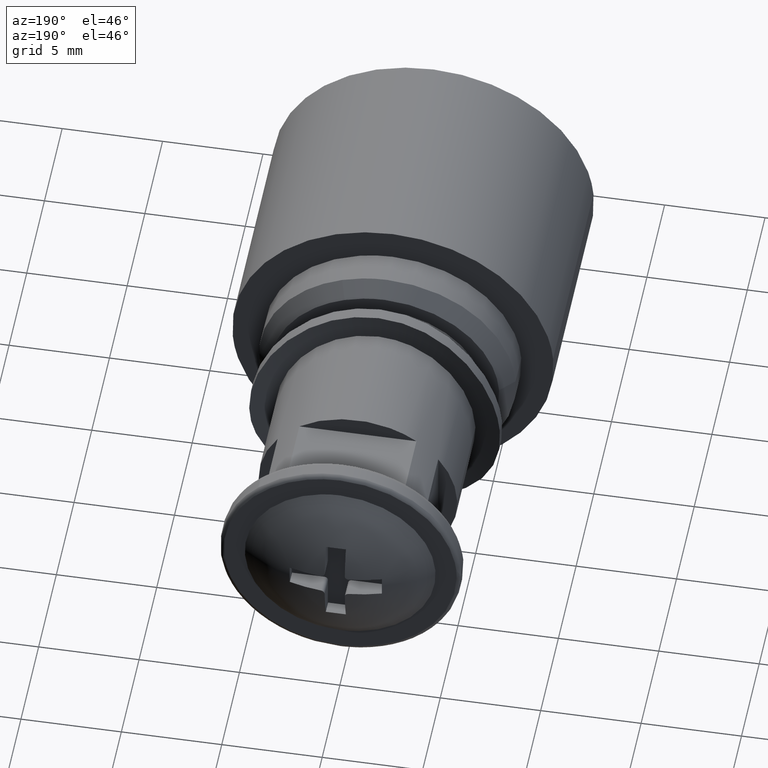
[diagram: clean part render]
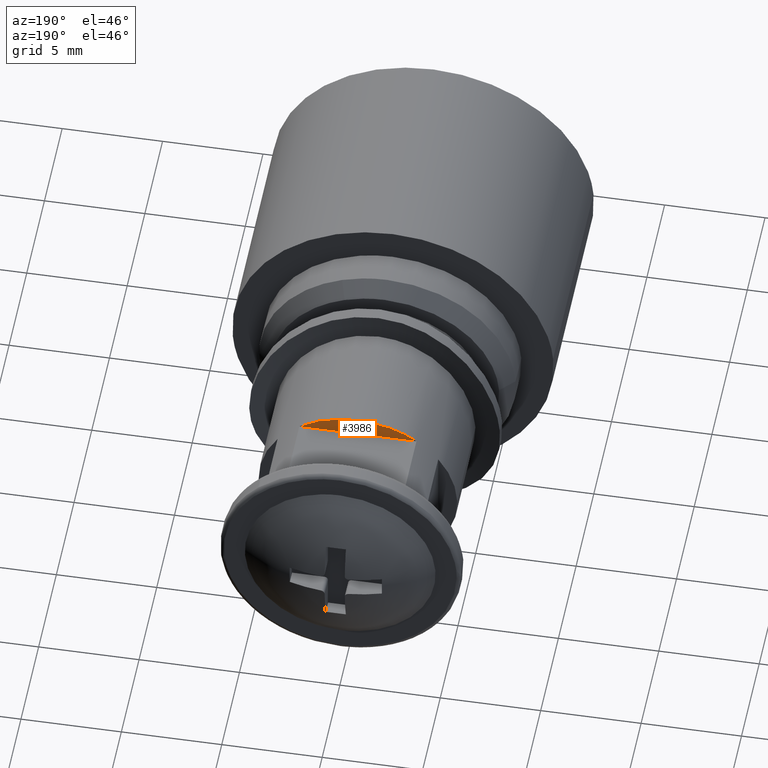
[diagram: same view with one face highlighted and labeled with its STEP entity id]
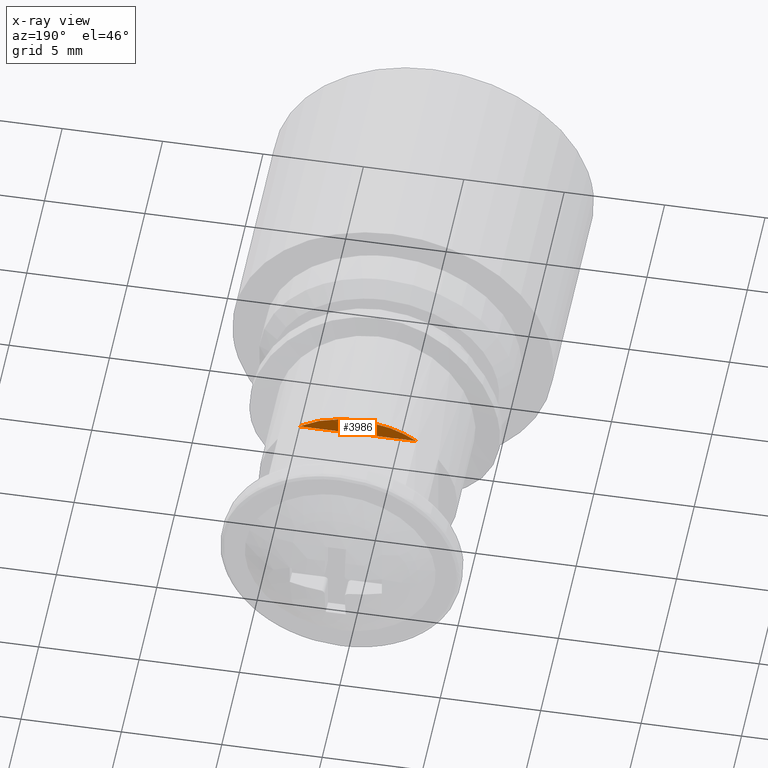
[diagram: x-ray of the same camera — body ghosted, the highlighted face saturated]
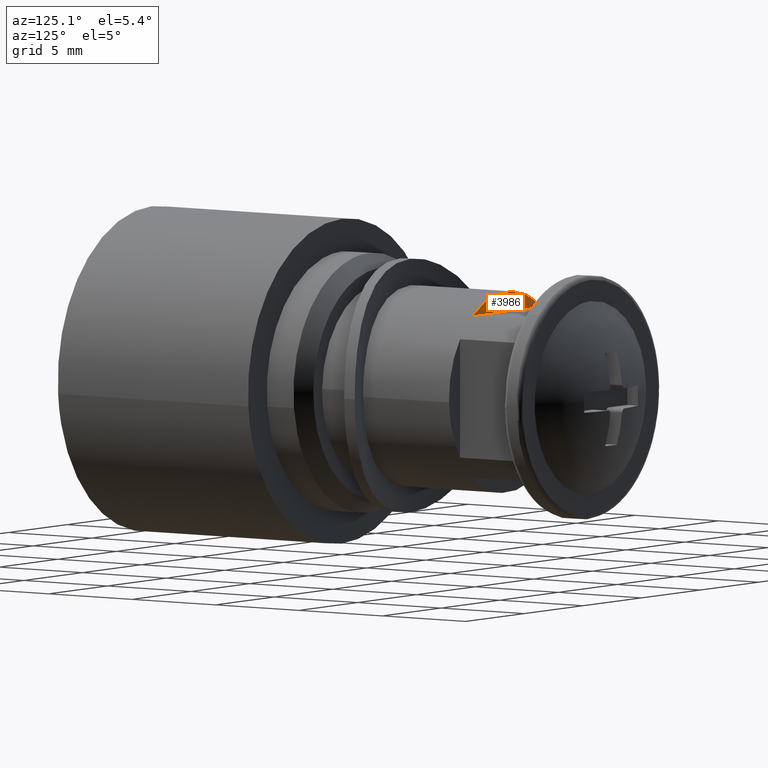
[diagram: same view with one face highlighted and labeled with its STEP entity id]
A machine part, auxiliary view. The second image highlights one B-rep face of the part: STEP entity #3986.
The next image is the same camera in x-ray: the body ghosted, the highlighted face saturated — about 0% of this face is hidden behind the body in this view.
A second angle (auxiliary view) of the same face is appended — the face is thin or edge-on in the first view.
In plain terms, the highlighted face is a freeform B-spline surface patch.
Its self-contained STEP definition (entity closure, byte-faithful):
#1923=CARTESIAN_POINT('',(2.915904800862819,9.900000470224770,4.000000189989706));
#1924=VERTEX_POINT('',#1923);
#1930=CARTESIAN_POINT('',(-2.915904800862819,9.900000470224770,4.000000189989706));
#1931=VERTEX_POINT('',#1930);
#1932=CARTESIAN_POINT('',(2.915904800862822,9.900000470224770,4.000000189989703));
#1933=CARTESIAN_POINT('',(8.673617E-016,9.900000470224768,6.125625290951698));
#1934=CARTESIAN_POINT('',(-2.915904800862821,9.900000470224770,4.000000189989705));
#1942=(BOUNDED_CURVE()B_SPLINE_CURVE(2,(#1932,#1933,#1934),.UNSPECIFIED.,.F.,.U.)CURVE()GEOMETRIC_REPRESENTATION_ITEM()QUASI_UNIFORM_CURVE()RATIONAL_B_SPLINE_CURVE((1.0,0.808080808080790,1.0))REPRESENTATION_ITEM(''));
#1943=EDGE_CURVE('',#1924,#1931,#1942,.T.);
#3973=CARTESIAN_POINT('',(-3.207203679165836,9.900000470224780,4.997452795820612));
#3974=CARTESIAN_POINT('',(3.207203835587159,9.900000470224780,4.997452795820612));
#3975=CARTESIAN_POINT('',(-3.207203679165836,9.900000470224780,3.952547518863845));
#3976=CARTESIAN_POINT('',(3.207203835587159,9.900000470224780,3.952547518863845));
#3977=B_SPLINE_SURFACE_WITH_KNOTS('',1,1,((#3973,#3975),(#3974,#3976)),.UNSPECIFIED.,.F.,.F.,.U.,(2,2),(2,2),(0.0,6.414407514752996),(0.041708282057568,0.958291814799979),.UNSPECIFIED.);
#3978=ORIENTED_EDGE('',*,*,#1943,.F.);
#3979=CARTESIAN_POINT('',(2.915904800862819,9.900000470224770,4.000000189989706));
#3980=CARTESIAN_POINT('',(-2.915904800862819,9.900000470224770,4.000000189989706));
#3981=QUASI_UNIFORM_CURVE('',1,(#3979,#3980),.UNSPECIFIED.,.F.,.U.);
#3982=EDGE_CURVE('',#1924,#1931,#3981,.T.);
#3983=ORIENTED_EDGE('',*,*,#3982,.T.);
#3984=EDGE_LOOP('',(#3978,#3983));
#3985=FACE_OUTER_BOUND('',#3984,.T.);
#3986=ADVANCED_FACE('',(#3985),#3977,.T.);